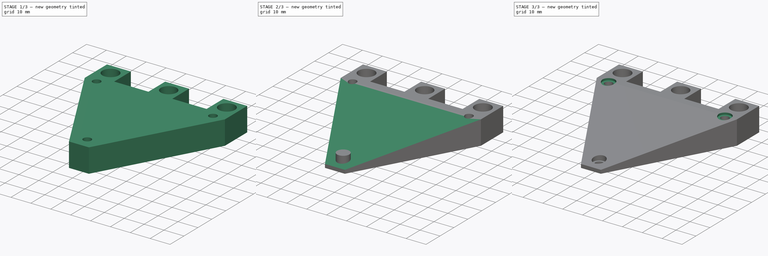
[diagram: build sequence overview — one tinted view per stage of 3, left to right]
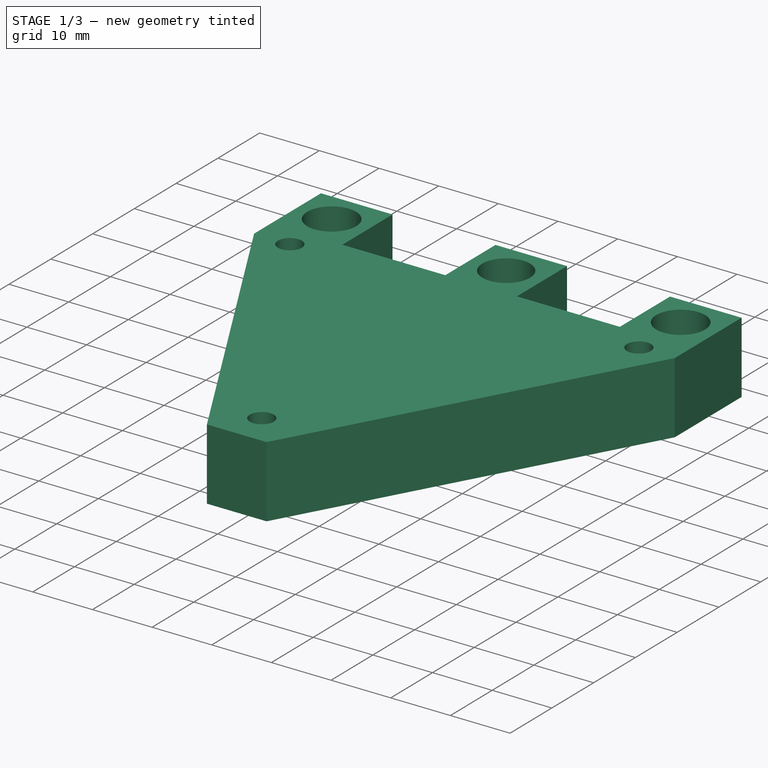
[diagram: stage 1 of 3 — iso view after this stage's code; geometry added in this stage tinted green]
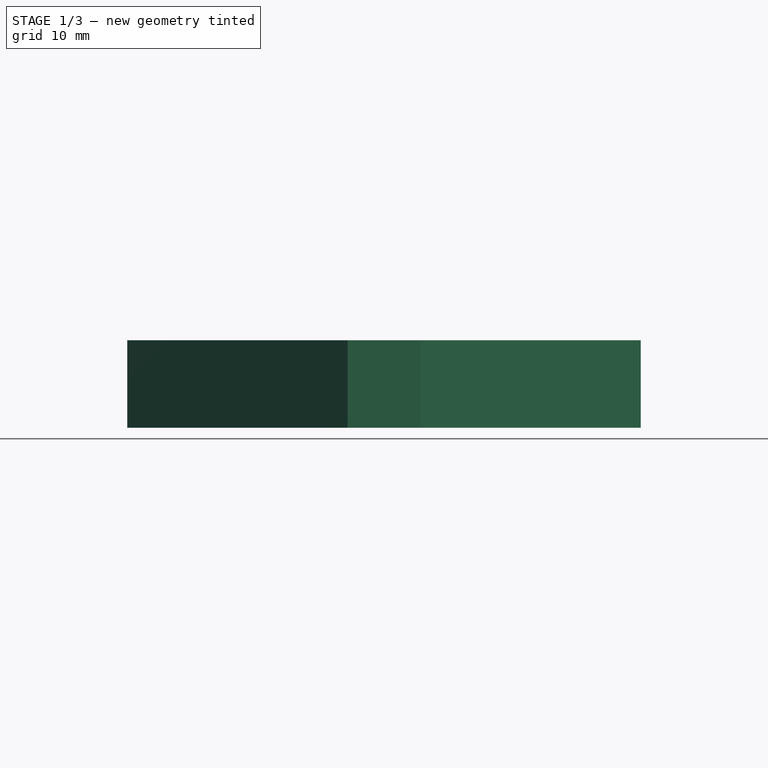
[diagram: stage 1 of 3 — front view after this stage's code; geometry added in this stage tinted green]
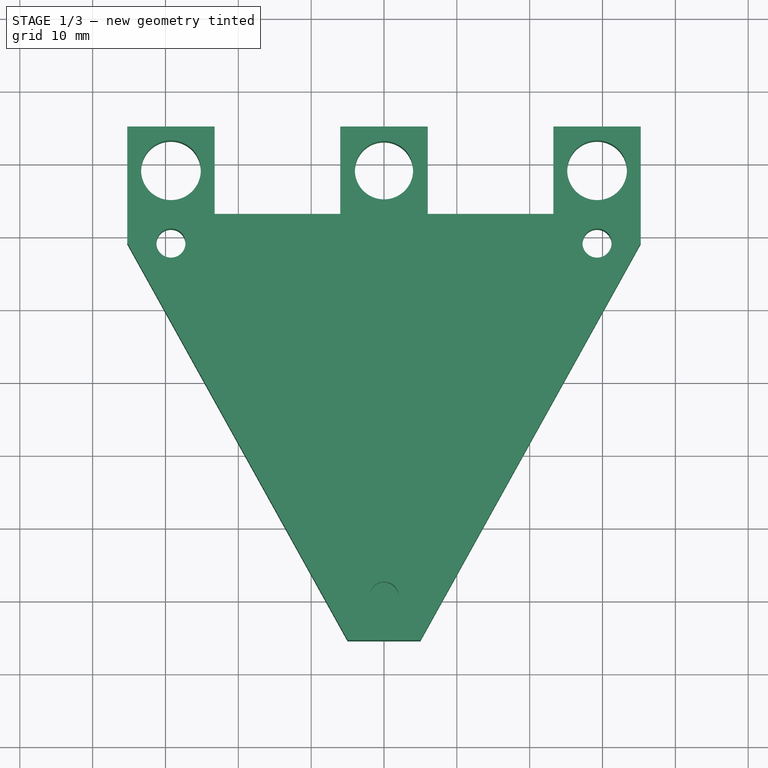
[diagram: stage 1 of 3 — top view after this stage's code; geometry added in this stage tinted green]
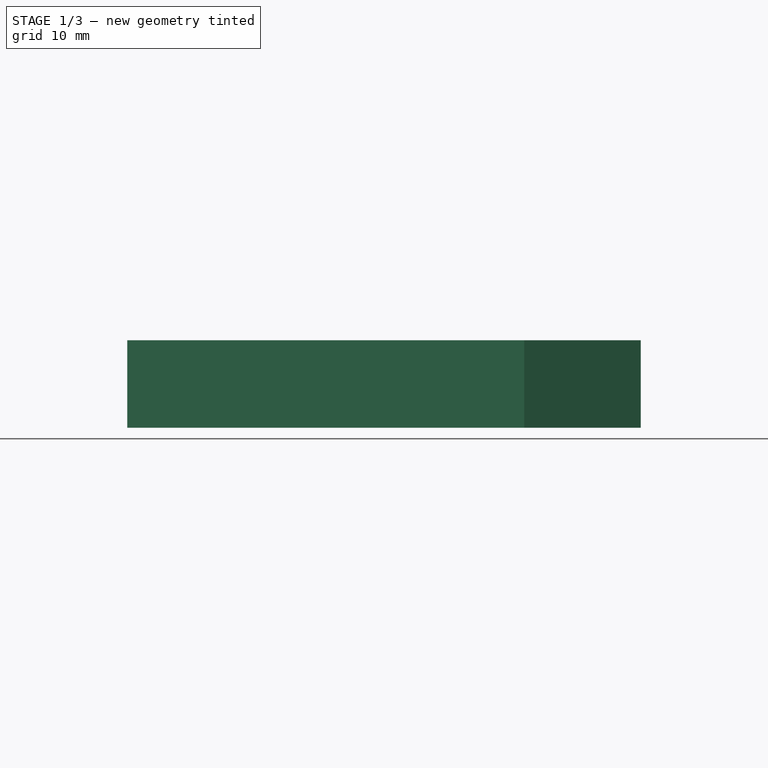
[diagram: stage 1 of 3 — right view after this stage's code; geometry added in this stage tinted green]
FCSTD DOCUMENT  (FreeCAD 0.16R6712 (Git))
Label: z-axis-lift
License: All rights reserved
LicenseURL: http://en.wikipedia.org/wiki/All_rights_reserved
objects: Sketcher::SketchObject×4, PartDesign::Pad×2, PartDesign::Pocket×2, Part::Cut×1
note: 13 computed .brp shape members not serialized (recipe doc carries the construction recipe); baked Part::Feature solids carry a one-line shape summary decoded from their .brp

FEATURE [Sketcher::SketchObject] Sketch
  sketch-geometry (20):
    g0: LineSegment StartX=-35.25 StartY=35.05 StartZ=0 EndX=-35.25 EndY=19.05 EndZ=0
    g1: LineSegment StartX=-35.25 StartY=19.05 StartZ=0 EndX=-5 EndY=-35.45 EndZ=0
    g2: LineSegment StartX=-5 StartY=-35.45 StartZ=0 EndX=5 EndY=-35.45 EndZ=0
    g3: LineSegment StartX=5 StartY=-35.45 StartZ=0 EndX=35.25 EndY=19.05 EndZ=0
    g4: LineSegment StartX=35.25 StartY=19.05 StartZ=0 EndX=35.25 EndY=35.05 EndZ=0
    g5: LineSegment StartX=35.25 StartY=35.05 StartZ=0 EndX=23.25 EndY=35.05 EndZ=0
    g6: LineSegment StartX=23.25 StartY=35.05 StartZ=0 EndX=23.25 EndY=23.05 EndZ=0
    g7: LineSegment StartX=23.25 StartY=23.05 StartZ=0 EndX=6 EndY=23.05 EndZ=0
    g8: LineSegment StartX=6 StartY=23.05 StartZ=0 EndX=6 EndY=35.05 EndZ=0
    g9: LineSegment StartX=6 StartY=35.05 StartZ=0 EndX=-6 EndY=35.05 EndZ=0
    g10: LineSegment StartX=-6 StartY=35.05 StartZ=0 EndX=-6 EndY=23.05 EndZ=0
    g11: LineSegment StartX=-6 StartY=23.05 StartZ=0 EndX=-23.25 EndY=23.05 EndZ=0
    g12: LineSegment StartX=-23.25 StartY=23.05 StartZ=0 EndX=-23.25 EndY=35.05 EndZ=0
    g13: LineSegment StartX=-23.25 StartY=35.05 StartZ=0 EndX=-35.25 EndY=35.05 EndZ=0
    g14: Circle CenterX=-29.25 CenterY=29.05 CenterZ=0 NormalX=0 NormalY=0 NormalZ=1 Radius=4.1
    g15: Circle CenterX=0 CenterY=29.05 CenterZ=0 NormalX=0 NormalY=0 NormalZ=1 Radius=4
    g16: Circle CenterX=29.25 CenterY=29.05 CenterZ=0 NormalX=0 NormalY=0 NormalZ=1 Radius=4.1
    g17: Circle CenterX=-29.25 CenterY=19.05 CenterZ=0 NormalX=0 NormalY=0 NormalZ=1 Radius=2
    g18: Circle CenterX=29.25 CenterY=19.05 CenterZ=0 NormalX=0 NormalY=0 NormalZ=1 Radius=2
    g19: Circle CenterX=0 CenterY=-29.45 CenterZ=0 NormalX=0 NormalY=0 NormalZ=1 Radius=2
  constraints (57):
    c: Vertical(g0)
    c: Coincident(g0,g1)
    c: Coincident(g1,g2)
    c: Horizontal(g2)
    c: Coincident(g2,g3)
    c: Coincident(g3,g4)
    c: Vertical(g4)
    c: Coincident(g4,g5)
    c: Horizontal(g5)
    c: Coincident(g5,g6)
    c: Coincident(g6,g7)
    c: Coincident(g7,g8)
    c: Vertical(g8)
    c: Coincident(g8,g9)
    c: Horizontal(g9)
    c: Coincident(g9,g10)
    c: Coincident(g10,g11)
    c: Horizontal(g11)
    c: Coincident(g11,g12)
    c: Coincident(g12,g13)
    c: Coincident(g13,g0)
    c: Horizontal(g13)
    c: Horizontal(g7)
    c: Vertical(g6)
    c: Vertical(g10)
    c: Vertical(g12)
    c: Equal(g9,g8)
    c: Equal(g6,g5)
    c: Equal(g13,g12)
    c: Equal(g13,g9)
    c: Equal(g13,g5)
    c: Symmetric(g0,g4,g-2)
    c: Symmetric(g9,g8,g-2)
    c: Equal(g0,g4)
    c: Equal(g1,g3)
    c: DistanceX(g13,g13) = 12
    c: DistanceX(g0,g4) = 70.5
    c: DistanceY(g1,g0) = 70.5
    c: DistanceY(g0,g0) = 16
    c: Symmetric(g16,g14,g-2)
    c: Equal(g14,g16)
    c: Radius(g14) = 4.1
    c: DistanceY(g14,g0) = 6
    c: DistanceX(g0,g14) = 6
    c: DistanceY(g15,g9) = 6
    c: DistanceX(g9,g15) = 6
    c: Equal(g17,g18)
    c: Equal(g18,g19)
    c: Radius(g19) = 2
    c: Symmetric(g17,g18,g-2)
    c: DistanceX(g17,g18) = 58.5
    c: DistanceY(g17,g14) = 10
    c: DistanceY(g-1,g4) = 35.05
    c: Radius(g15) = 4
    c: DistanceX(g19,g-1) = 0
    c: DistanceY(g19,g14) = 58.5
    c: DistanceX(g2,g2) = 10
FEATURE [PartDesign::Pad] Pad
  Length = 12
  Length2 = 100
  Sketch = -> Sketch
  Type = 0
FEATURE [Sketcher::SketchObject] Sketch004
  Placement = pos=(0,0,5) rot=(0,0,1;0rad)
  sketch-geometry (1):
    g0: Circle CenterX=0 CenterY=-29.5 CenterZ=0 NormalX=0 NormalY=0 NormalZ=1 Radius=3.1
  constraints (3):
    c: PointOnObject(g0,g-2)
    c: Radius(g0) = 3.1
    c: DistanceY(g0,g-1) = 29.5
FEATURE [PartDesign::Pad] Pad001
  Length = 1
  Length2 = 4
  Placement = pos=(0,0,5) rot=(0,0,1;0rad)
  Sketch = -> Sketch004
  Type = 4
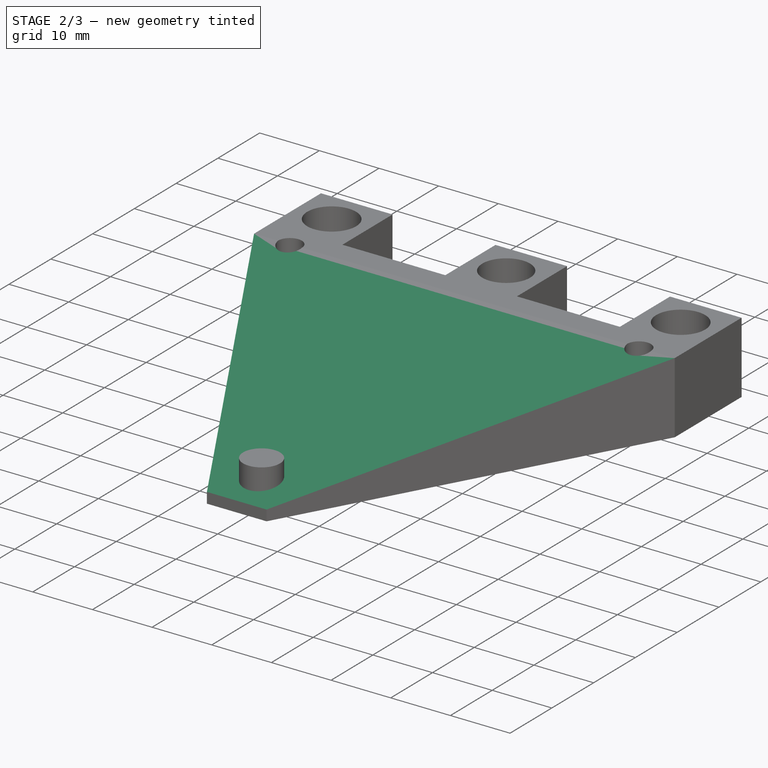
[diagram: stage 2 of 3 — iso view after this stage's code; geometry added in this stage tinted green]
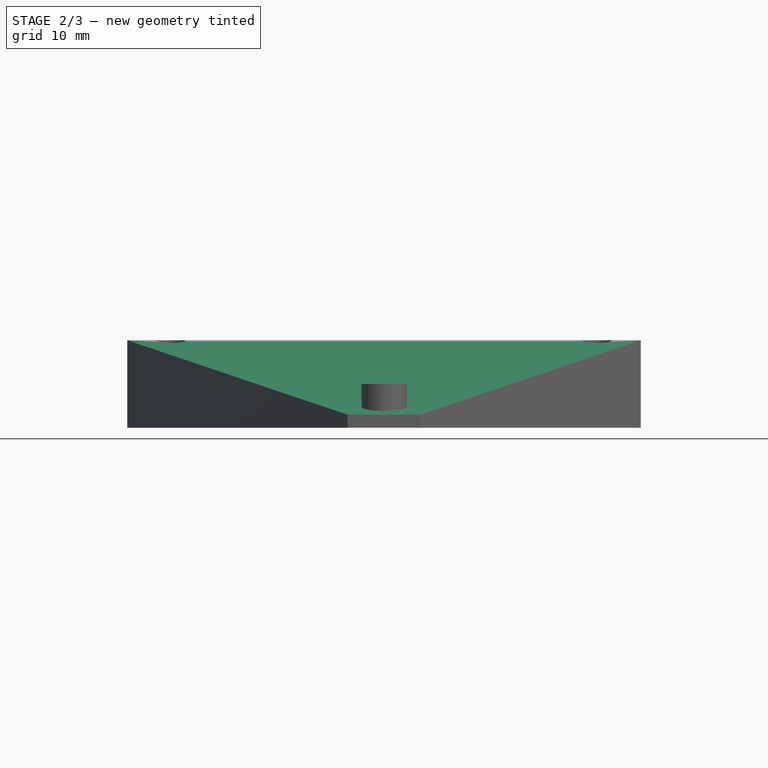
[diagram: stage 2 of 3 — front view after this stage's code; geometry added in this stage tinted green]
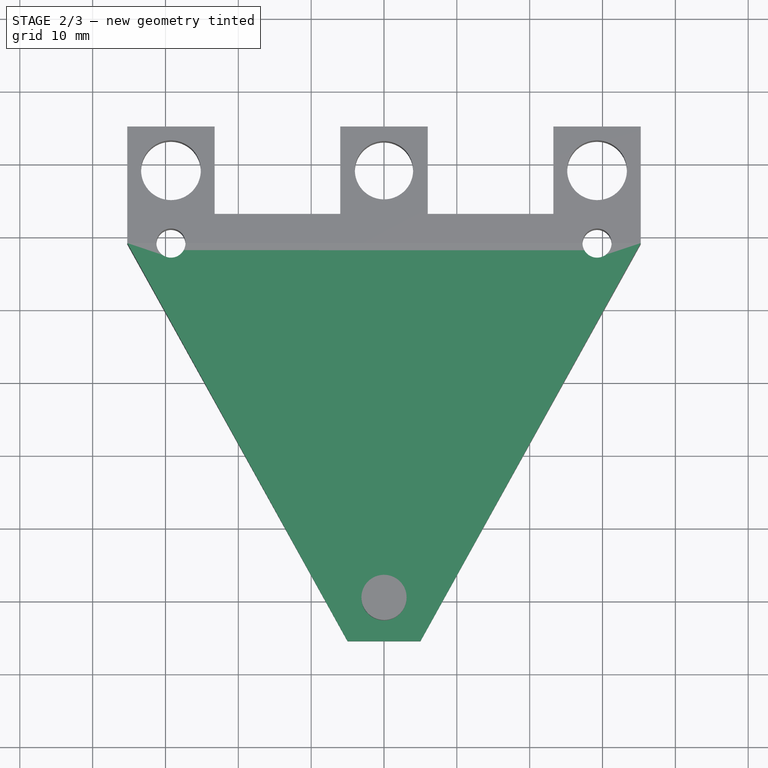
[diagram: stage 2 of 3 — top view after this stage's code; geometry added in this stage tinted green]
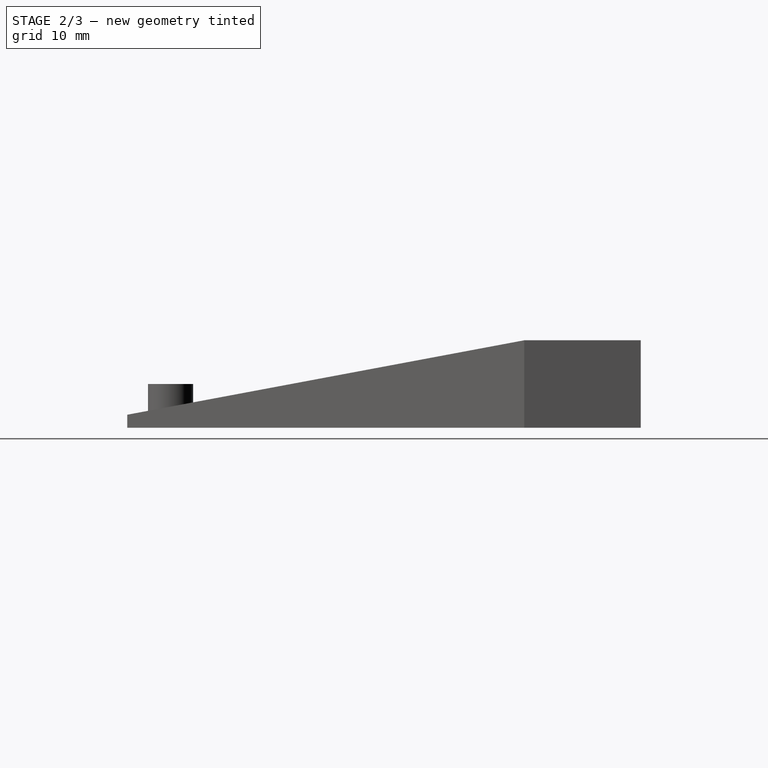
[diagram: stage 2 of 3 — right view after this stage's code; geometry added in this stage tinted green]
FEATURE [Sketcher::SketchObject] Sketch001
  Placement = pos=(-35.25,0,0) rot=(0.57735,-0.57735,-0.57735;2.0944rad)
  Support = -> Pad [Face1]
  sketch-geometry (3):
    g0: LineSegment StartX=-19.05 StartY=12 StartZ=0 EndX=44.95 EndY=0 EndZ=0
    g1: LineSegment StartX=44.95 StartY=0 StartZ=0 EndX=44.95 EndY=12 EndZ=0
    g2: LineSegment StartX=44.95 StartY=12 StartZ=0 EndX=-19.05 EndY=12 EndZ=0
  constraints (9):
    c: Coincident(g0,g1)
    c: Vertical(g1)
    c: Coincident(g1,g2)
    c: Coincident(g2,g0)
    c: DistanceY(g1,g1) = 12
    c: DistanceY(g-1,g1) = 12
    c: DistanceX(g2,g2) = 64
    c: DistanceX(g0,g-1) = 19.05
    c: Horizontal(g2)
FEATURE [PartDesign::Pocket] Pocket
  Length = 5
  Sketch = -> Sketch001
  Type = 1
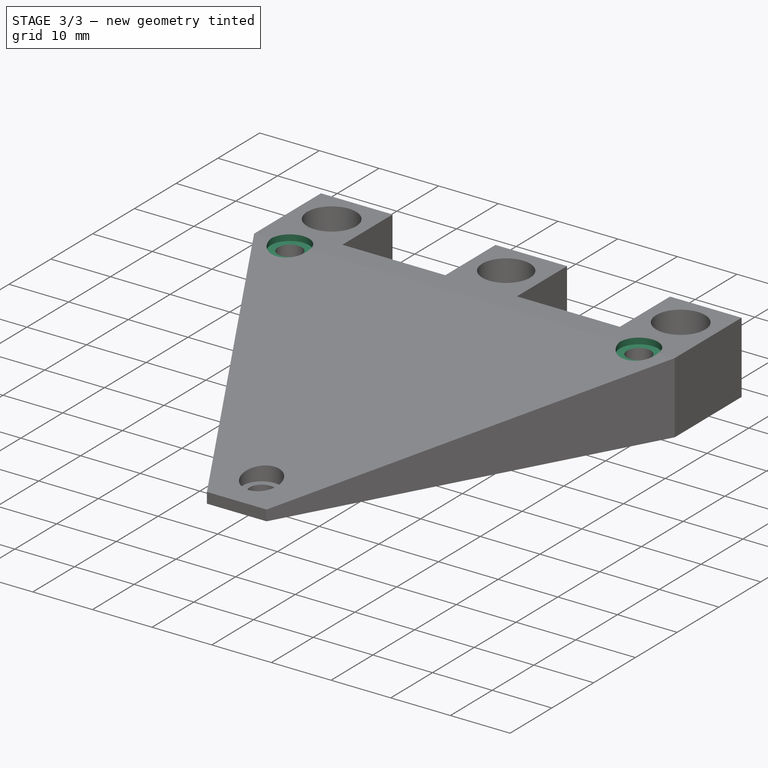
[diagram: stage 3 of 3 — iso view after this stage's code; geometry added in this stage tinted green]
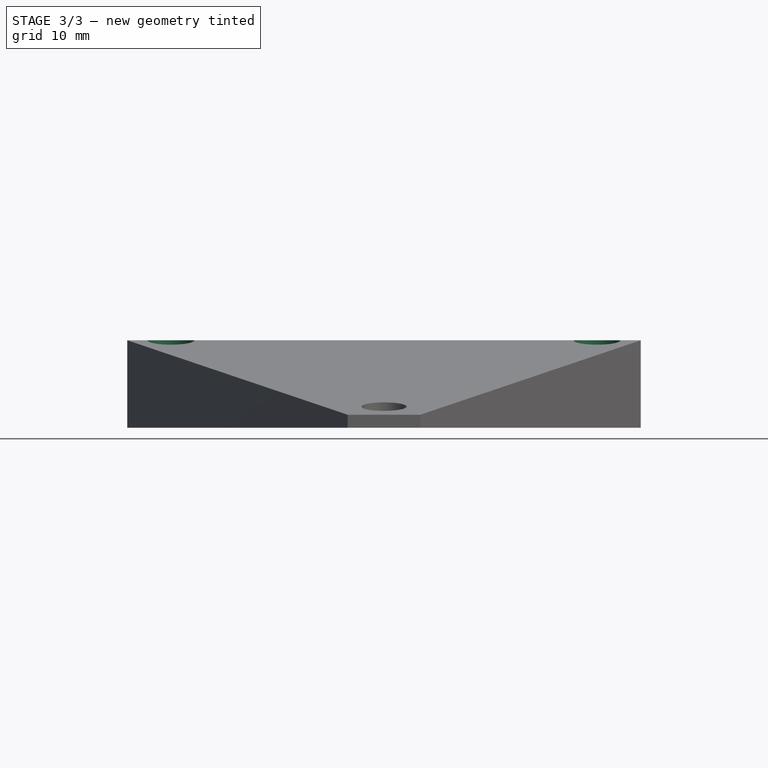
[diagram: stage 3 of 3 — front view after this stage's code; geometry added in this stage tinted green]
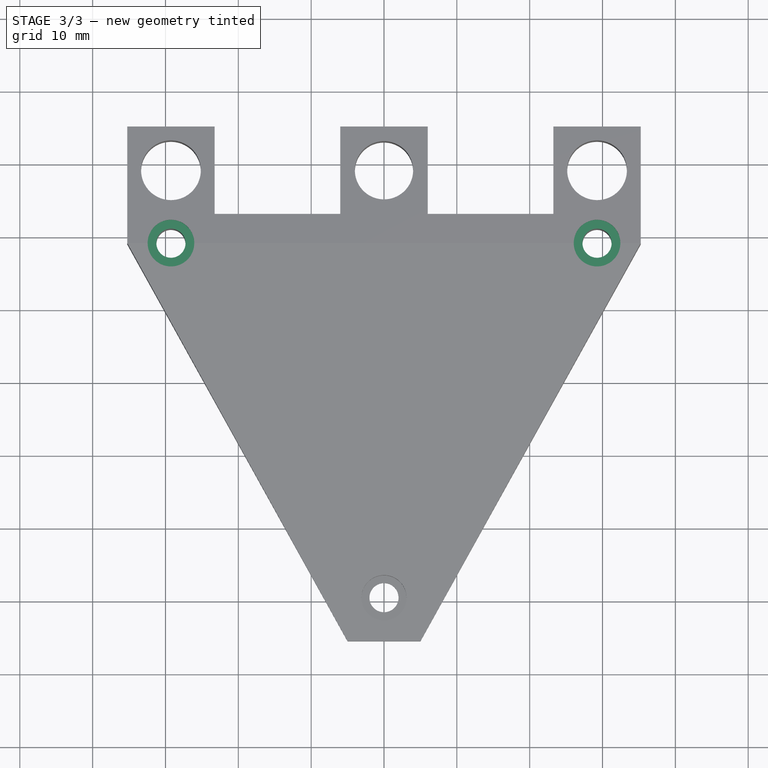
[diagram: stage 3 of 3 — top view after this stage's code; geometry added in this stage tinted green]
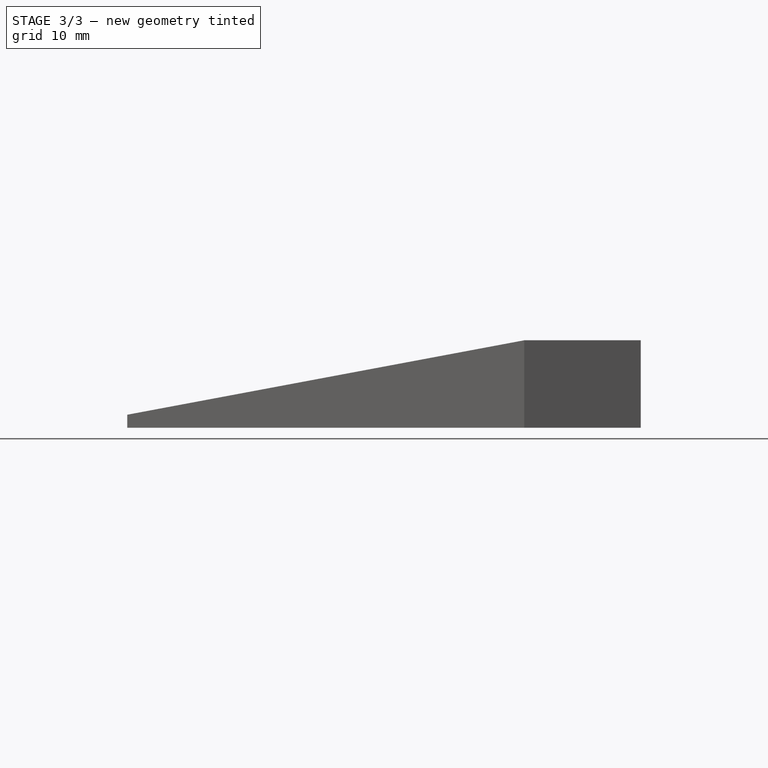
[diagram: stage 3 of 3 — right view after this stage's code; geometry added in this stage tinted green]
FEATURE [Sketcher::SketchObject] Sketch002
  Placement = pos=(0,0,12) rot=(0,0,1;0rad)
  Support = -> Pocket [Face4]
  sketch-geometry (2):
    g0: Circle CenterX=-29.25 CenterY=19.05 CenterZ=0 NormalX=0 NormalY=0 NormalZ=1 Radius=3.2
    g1: Circle CenterX=29.25 CenterY=19.05 CenterZ=0 NormalX=0 NormalY=0 NormalZ=1 Radius=3.2
  constraints (5):
    c: Symmetric(g1,g0,g-2)
    c: Equal(g0,g1)
    c: DistanceX(g0,g1) = 58.5
    c: DistanceY(g-1,g1) = 19.05
    c: Radius(g1) = 3.2
FEATURE [PartDesign::Pocket] Pocket001
  Length = 1
  Sketch = -> Sketch002
  Type = 0
FEATURE [Part::Cut] Cut
  Base = -> Pocket001
  Tool = -> Pad001
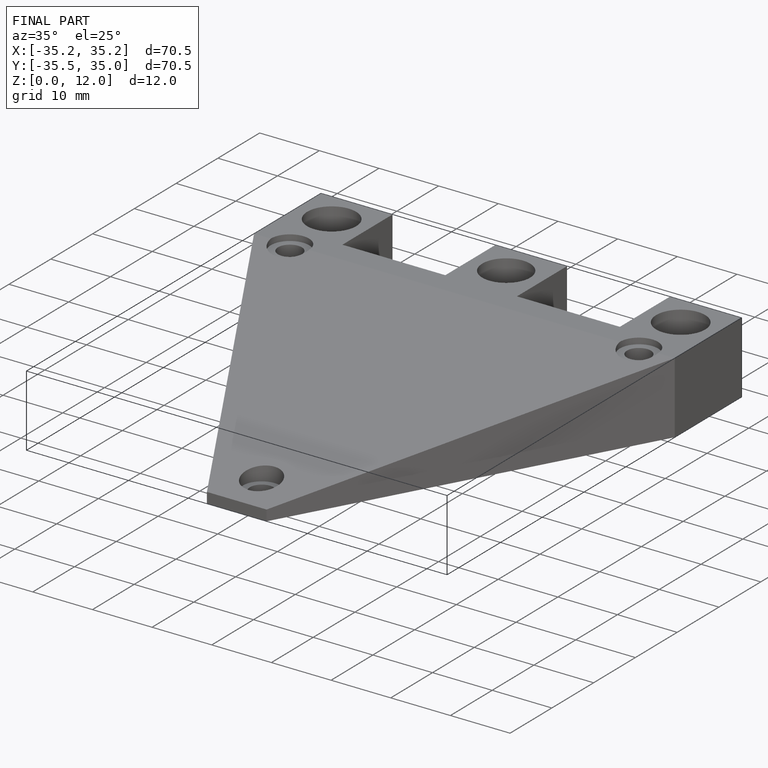
[diagram: finished part — iso view with bounding-box wireframe]
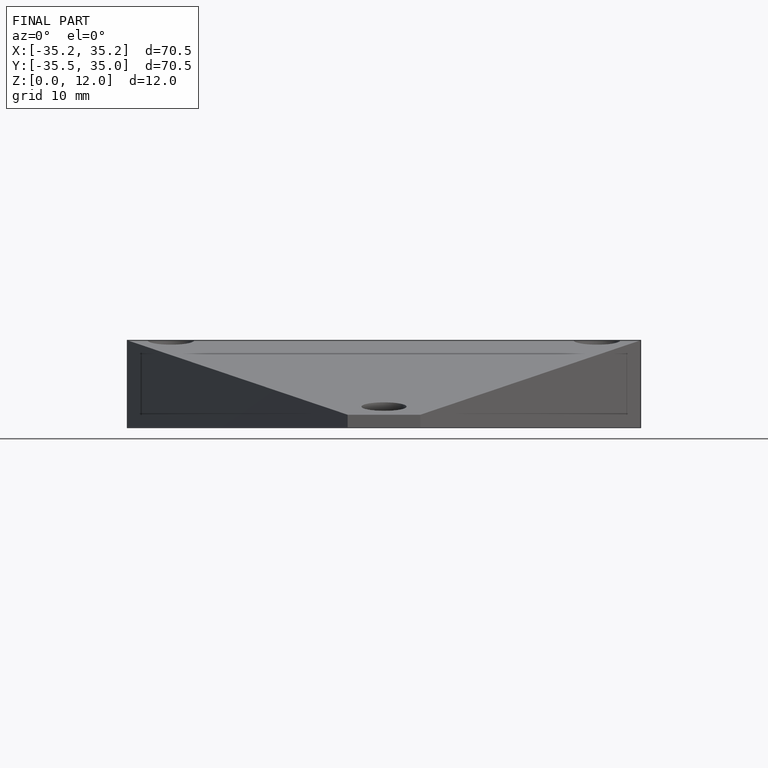
[diagram: finished part — front view with bounding-box wireframe]
